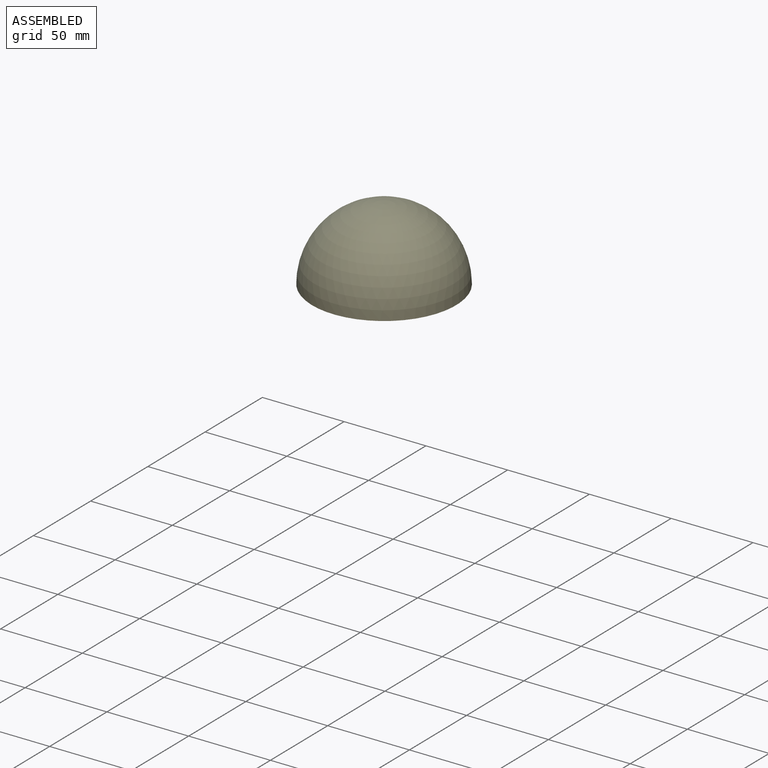
[diagram: assembled view]
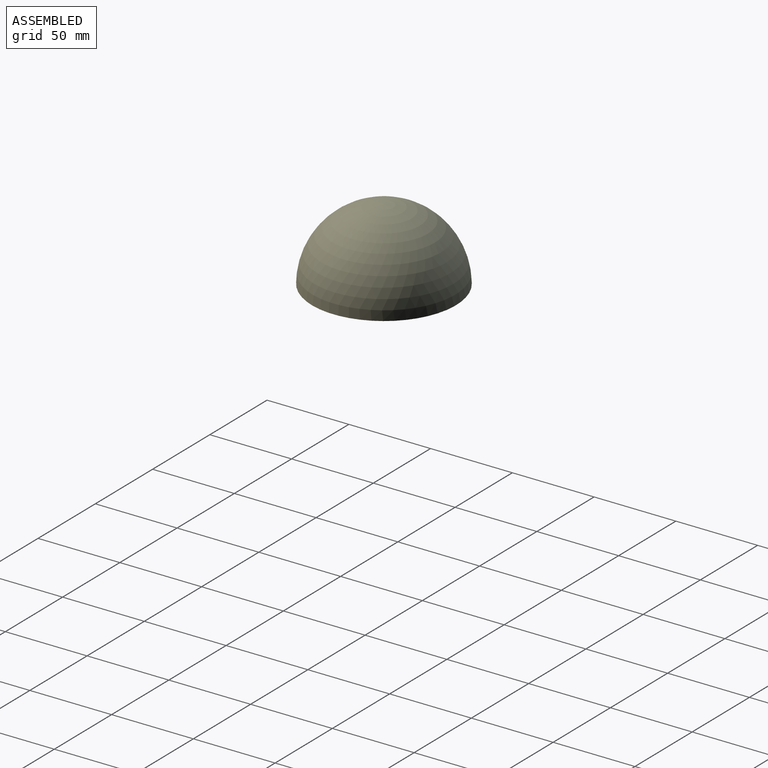
[diagram: assembled view, second angle]
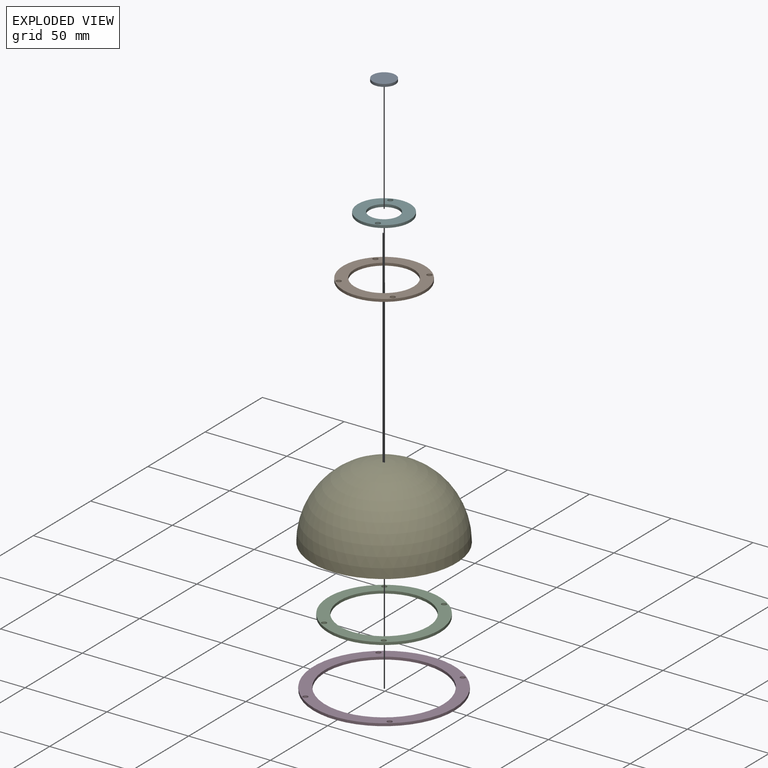
[diagram: exploded view]
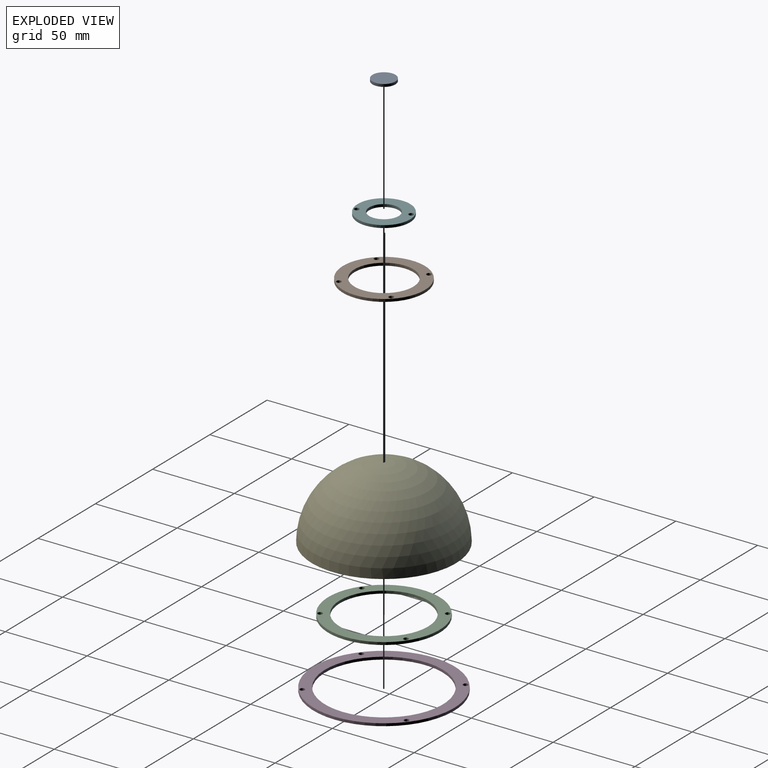
[diagram: exploded view, second angle]
ASSEMBLY  parts=6 mates=5
PART A: 3 faces, bbox 14x14x1.6 mm
  f0: cylinder r=7mm len=14mm, axis (0,0,-1), area 70.4mm2, adj f1,f2
  f1: plane 14x14mm, normal (0,0,1), area 153.9mm2, adj f0
  f2: plane 14x14mm, normal (0,0,-1), area 153.9mm2, adj f0
PART B: 8 faces, bbox 50x50x1.6 mm
  f0: cylinder r=1.5mm len=3mm, axis (0,0,-1), area 15.1mm2, adj f6,f7
  f1: cylinder r=1.5mm len=3mm, axis (0,0,-1), area 15.1mm2, adj f6,f7
  f2: cylinder r=1.5mm len=3mm, axis (0,0,-1), area 15.1mm2, adj f6,f7
  f3: cylinder r=1.5mm len=3mm, axis (0,0,-1), area 15.1mm2, adj f6,f7
  f4: cylinder r=18mm len=36mm, axis (0,0,-1), area 181mm2, adj f6,f7
  f5: cylinder r=25mm len=50mm, axis (0,0,-1), area 251.3mm2, adj f6,f7
  f6: plane 50x50mm, normal (0,0,1), area 917.3mm2, adj f0,f1,f2,f3,f4,f5
  f7: plane 50x50mm, normal (0,0,-1), area 917.3mm2, adj f0,f1,f2,f3,f4,f5
PART C: 8 faces, bbox 68x68x1.6 mm
  f0: cylinder r=1.5mm len=3mm, axis (0,0,-1), area 15.1mm2, adj f6,f7
  f1: cylinder r=1.5mm len=3mm, axis (0,0,-1), area 15.1mm2, adj f6,f7
  f2: cylinder r=1.5mm len=3mm, axis (0,0,-1), area 15.1mm2, adj f6,f7
  f3: cylinder r=1.5mm len=3mm, axis (0,0,-1), area 15.1mm2, adj f6,f7
  f4: cylinder r=27mm len=54mm, axis (0,0,-1), area 271.4mm2, adj f6,f7
  f5: cylinder r=34mm len=68mm, axis (0,0,-1), area 341.8mm2, adj f6,f7
  f6: plane 68x68mm, normal (0,0,1), area 1313.2mm2, adj f0,f1,f2,f3,f4,f5
  f7: plane 68x68mm, normal (0,0,-1), area 1313.2mm2, adj f0,f1,f2,f3,f4,f5
PART D: 8 faces, bbox 86x86x1.6 mm
  f0: cylinder r=1.5mm len=3mm, axis (0,0,-1), area 15.1mm2, adj f6,f7
  f1: cylinder r=1.5mm len=3mm, axis (0,0,-1), area 15.1mm2, adj f6,f7
  f2: cylinder r=1.5mm len=3mm, axis (0,0,-1), area 15.1mm2, adj f6,f7
  f3: cylinder r=1.5mm len=3mm, axis (0,0,-1), area 15.1mm2, adj f6,f7
  f4: cylinder r=36mm len=72mm, axis (0,0,-1), area 361.9mm2, adj f6,f7
  f5: cylinder r=43mm len=86mm, axis (0,0,-1), area 432.3mm2, adj f6,f7
  f6: plane 86x86mm, normal (0,0,1), area 1709mm2, adj f0,f1,f2,f3,f4,f5
  f7: plane 86x86mm, normal (0,0,-1), area 1709mm2, adj f0,f1,f2,f3,f4,f5
PART E: 25 faces, bbox 88.1x88.1x44 mm
  f0: cylinder r=25mm len=50mm, axis (0,0,-1), area 157.1mm2, adj f1,f24
  f1: plane 50x50mm, normal (0,0,-1), area 153.9mm2, adj f0,f2
  f2: cylinder r=24mm len=48mm, axis (0,0,-1), area 104.5mm2, adj f1,f3
  f3: sphere r=43.03mm, area 873.1mm2, adj f2,f4
  f4: plane 36.6x36.6mm, normal (0,0,-1), area 247.8mm2, adj f3,f5
  f5: cylinder r=16mm len=32mm, axis (0,0,-1), area 100.5mm2, adj f4,f6
  f6: plane 32x32mm, normal (0,0,-1), area 97.4mm2, adj f5,f7
  f7: cylinder r=15mm len=30mm, axis (0,0,-1), area 36.4mm2, adj f6,f8
  f8: sphere r=43.03mm, area 304.4mm2, adj f7,f9
  f9: plane 23.06x23.06mm, normal (0,0,-1), area 263.6mm2, adj f8,f10
  f10: cylinder r=7mm len=14mm, axis (0,0,-1), area 44mm2, adj f9,f11
  f11: plane 14x14mm, normal (0,0,-1), area 40.8mm2, adj f10,f12
  f12: cone r=6mm half-angle=84.5deg, axis (0,0,-1), area 113.6mm2, adj f11
  f13: sphere r=44.03mm, area 12180.7mm2, adj f14
  f14: plane 88.06x88.06mm, normal (0,0,-1), area 281.5mm2, adj f13,f15
  f15: cylinder r=43mm len=86mm, axis (0,0,-1), area 432.3mm2, adj f14,f16
  f16: plane 86x86mm, normal (0,0,-1), area 267mm2, adj f15,f17
  f17: cylinder r=42mm len=84mm, axis (0,0,-1), area 2047.1mm2, adj f16,f18
  f18: sphere r=43.03mm, area 4330.2mm2, adj f17,f19
  f19: plane 69.51x69.51mm, normal (0,0,-1), area 162.6mm2, adj f18,f20
  f20: cylinder r=34mm len=68mm, axis (0,0,-1), area 213.6mm2, adj f19,f21
  f21: plane 68x68mm, normal (0,0,-1), area 210.5mm2, adj f20,f22
  f22: cylinder r=33mm len=66mm, axis (0,0,-1), area 257.3mm2, adj f21,f23
  f23: sphere r=43.03mm, area 1732.4mm2, adj f22,f24
  f24: plane 52.69x52.69mm, normal (0,0,-1), area 216.9mm2, adj f0,f23
PART F: 6 faces, bbox 32x32x1.6 mm
  f0: cylinder r=1.5mm len=3mm, axis (0,0,-1), area 15.1mm2, adj f4,f5
  f1: cylinder r=1.5mm len=3mm, axis (0,0,-1), area 15.1mm2, adj f4,f5
  f2: cylinder r=9mm len=18mm, axis (0,0,-1), area 90.5mm2, adj f4,f5
  f3: cylinder r=16mm len=32mm, axis (0,0,-1), area 160.8mm2, adj f4,f5
  f4: plane 32x32mm, normal (0,0,1), area 535.6mm2, adj f0,f1,f2,f3
  f5: plane 32x32mm, normal (0,0,-1), area 535.6mm2, adj f0,f1,f2,f3
PLACE A t=(1.29,-2.54,18.43)mm
PLACE B t=(1.29,-2.54,11)mm
PLACE C t=(1.29,-2.54,2.35)mm
PLACE D t=(1.29,-2.54,-22.42)mm
PLACE E t=(1.29,-2.54,-22.42)mm
PLACE F t=(1.29,-2.54,15.92)mm
MATE fastened D.f4 <-> E.f12  axis (0,0,-1) through (1.29,-2.54,-22.42)mm
MATE fastened B.f4 <-> E.f12  axis (0,0,1) through (1.29,-2.54,12.6)mm
MATE fastened A.f0 <-> E.f12  axis (0,0,1) through (1.29,-2.54,20.03)mm
MATE fastened F.f2 <-> E.f0  axis (0,0,1) through (1.29,-2.54,17.52)mm
MATE fastened C.f4 <-> E.f12  axis (0,0,1) through (1.29,-2.54,3.95)mm
